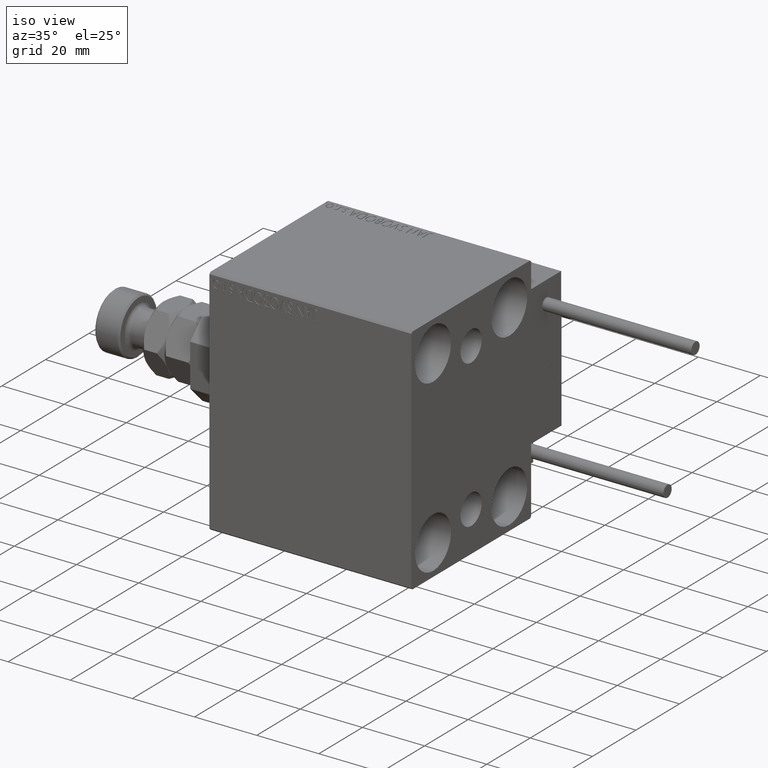
[diagram: clean part render]
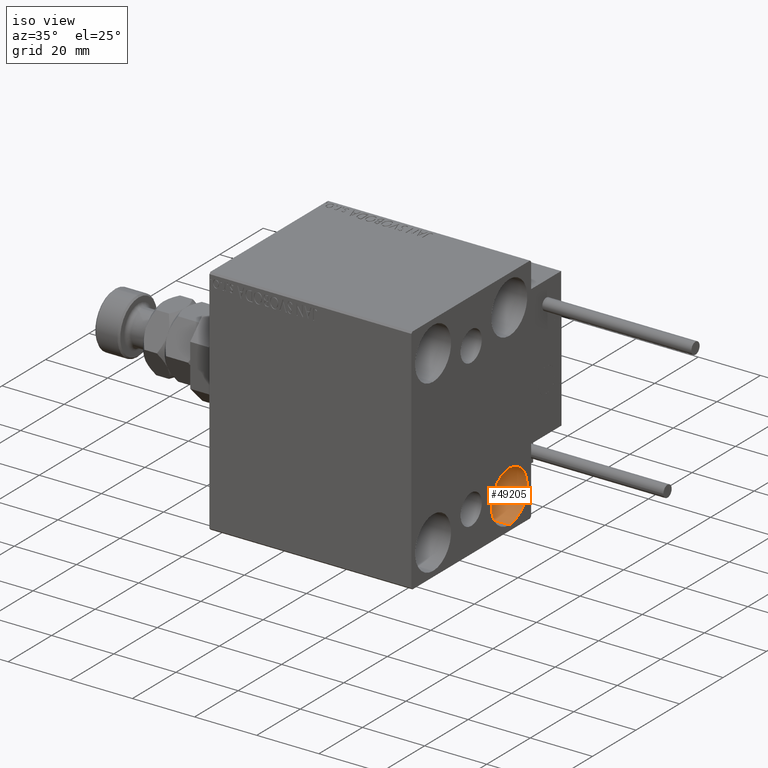
[diagram: same view with one face highlighted and labeled with its STEP entity id]
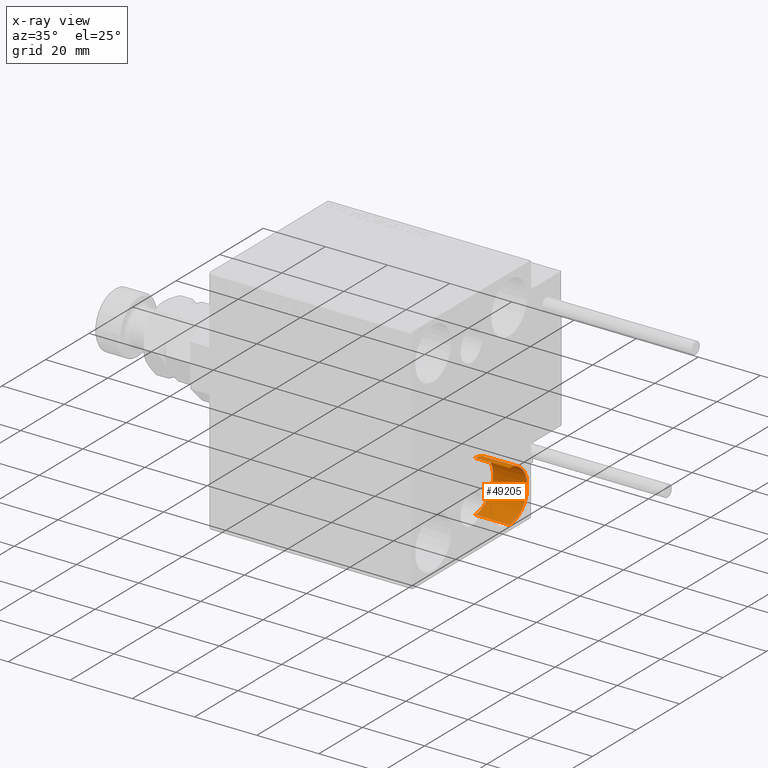
[diagram: x-ray of the same camera — body ghosted, the highlighted face saturated]
A machine part, iso view. The second image highlights one B-rep face of the part: STEP entity #49205.
The next image is the same camera in x-ray: the body ghosted, the highlighted face saturated — about 4% of this face is hidden behind the body in this view.
In plain terms, the highlighted cylindrical surface (edge-blend (fillet) strip) has radius 8.25 mm, axis along (1, 0, 0).
Its self-contained STEP definition (entity closure, byte-faithful):
#849 = CARTESIAN_POINT ( 'NONE',  ( 54.00000000000000711, 17.49999999999999645, -19.25000000000000355 ) ) ;
#1506 = AXIS2_PLACEMENT_3D ( 'NONE', #14510, #29868, #34821 ) ;
#4612 = CARTESIAN_POINT ( 'NONE',  ( 54.00000000000000711, 17.49999999999999645, -27.50000000000000355 ) ) ;
#6006 = DIRECTION ( 'NONE',  ( -1.000000000000000000, -0.000000000000000000, -0.000000000000000000 ) ) ;
#6266 = CARTESIAN_POINT ( 'NONE',  ( 65.00000000000000000, 17.49999999999999645, -27.50000000000000355 ) ) ;
#10375 = DIRECTION ( 'NONE',  ( 1.000000000000000000, -0.000000000000000000, -0.000000000000000000 ) ) ;
#12023 = AXIS2_PLACEMENT_3D ( 'NONE', #6266, #6006, #37296 ) ;
#13998 = FACE_OUTER_BOUND ( 'NONE', #51310, .T. ) ;
#14407 = DIRECTION ( 'NONE',  ( 1.000000000000000000, -0.000000000000000000, -0.000000000000000000 ) ) ;
#14510 = CARTESIAN_POINT ( 'NONE',  ( 54.00000000000000711, 17.49999999999999645, -27.50000000000000355 ) ) ;
#15009 = EDGE_CURVE ( 'NONE', #45228, #35270, #36570, .T. ) ;
#17357 = EDGE_CURVE ( 'NONE', #45228, #27002, #51440, .T. ) ;
#19377 = CARTESIAN_POINT ( 'NONE',  ( 65.00000000000000000, 17.49999999999999645, -19.25000000000000355 ) ) ;
#19822 = AXIS2_PLACEMENT_3D ( 'NONE', #4612, #28089, #39834 ) ;
#21065 = ORIENTED_EDGE ( 'NONE', *, *, #36737, .T. ) ;
#22633 = CARTESIAN_POINT ( 'NONE',  ( 54.00000000000000711, 17.49999999999999645, -35.75000000000000711 ) ) ;
#25681 = VECTOR ( 'NONE', #14407, 1000.000000000000000 ) ;
#27002 = VERTEX_POINT ( 'NONE', #27143 ) ;
#27143 = CARTESIAN_POINT ( 'NONE',  ( 54.00000000000000711, 17.49999999999999645, -35.75000000000000711 ) ) ;
#28089 = DIRECTION ( 'NONE',  ( -1.000000000000000000, -0.000000000000000000, -0.000000000000000000 ) ) ;
#28520 = ORIENTED_EDGE ( 'NONE', *, *, #17357, .T. ) ;
#29491 = CIRCLE ( 'NONE', #12023, 8.250000000000000000 ) ;
#29868 = DIRECTION ( 'NONE',  ( 1.000000000000000000, -0.000000000000000000, -0.000000000000000000 ) ) ;
#33076 = CARTESIAN_POINT ( 'NONE',  ( 65.00000000000000000, 17.49999999999999645, -35.75000000000000711 ) ) ;
#33446 = CARTESIAN_POINT ( 'NONE',  ( 54.00000000000000711, 17.49999999999999645, -19.25000000000000355 ) ) ;
#34078 = LINE ( 'NONE', #22633, #43700 ) ;
#34821 = DIRECTION ( 'NONE',  ( 0.000000000000000000, 0.000000000000000000, -1.000000000000000000 ) ) ;
#35270 = VERTEX_POINT ( 'NONE', #19377 ) ;
#35553 = EDGE_CURVE ( 'NONE', #35270, #37522, #29491, .T. ) ;
#36570 = LINE ( 'NONE', #849, #25681 ) ;
#36737 = EDGE_CURVE ( 'NONE', #27002, #37522, #34078, .T. ) ;
#37296 = DIRECTION ( 'NONE',  ( 0.000000000000000000, 0.000000000000000000, 1.000000000000000000 ) ) ;
#37522 = VERTEX_POINT ( 'NONE', #33076 ) ;
#38098 = ORIENTED_EDGE ( 'NONE', *, *, #15009, .F. ) ;
#39834 = DIRECTION ( 'NONE',  ( 0.000000000000000000, 0.000000000000000000, 1.000000000000000000 ) ) ;
#42669 = CYLINDRICAL_SURFACE ( 'NONE', #1506, 8.250000000000000000 ) ;
#43700 = VECTOR ( 'NONE', #10375, 1000.000000000000000 ) ;
#45228 = VERTEX_POINT ( 'NONE', #33446 ) ;
#45673 = ORIENTED_EDGE ( 'NONE', *, *, #35553, .F. ) ;
#49205 = ADVANCED_FACE ( 'NONE', ( #13998 ), #42669, .F. ) ;
#51310 = EDGE_LOOP ( 'NONE', ( #38098, #28520, #21065, #45673 ) ) ;
#51440 = CIRCLE ( 'NONE', #19822, 8.250000000000000000 ) ;